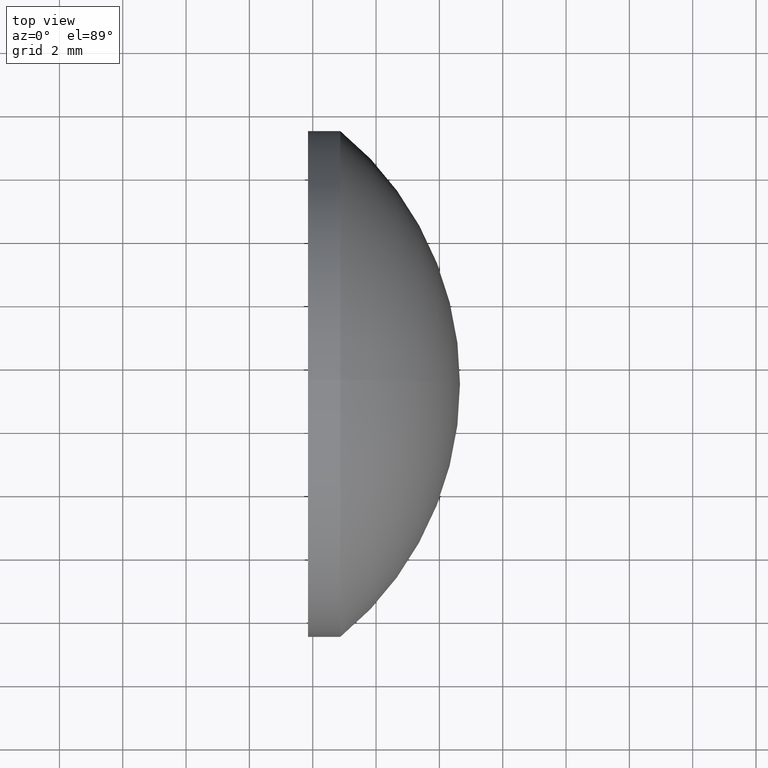
[diagram: clean part render]
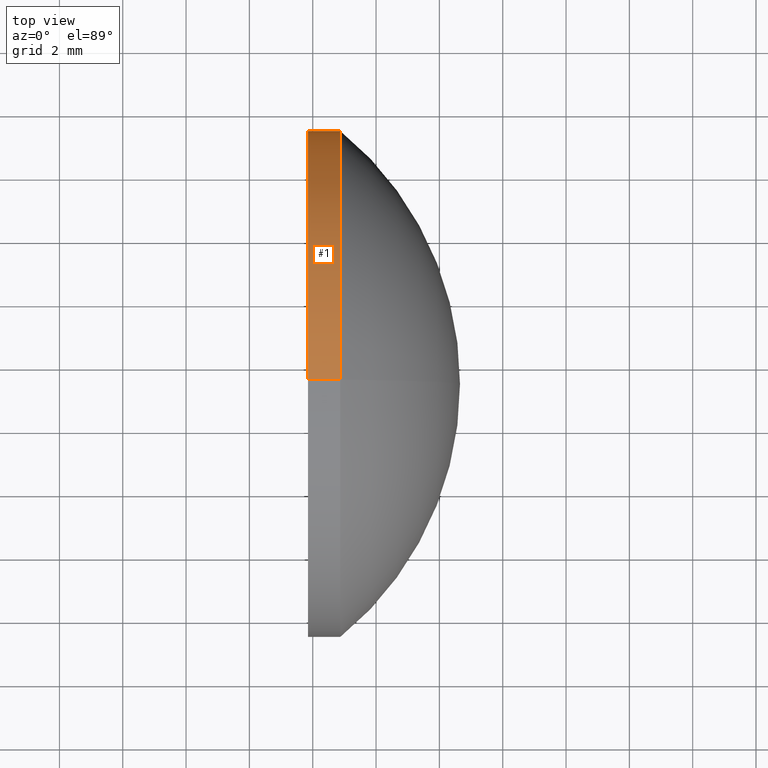
[diagram: same view with one face highlighted and labeled with its STEP entity id]
A machine part, top view. The second image highlights one B-rep face of the part: STEP entity #1.
In plain terms, the highlighted cylindrical surface (partial cylindrical patch) has radius 8 mm, axis along (-1, -0, -0).
Its self-contained STEP definition (entity closure, byte-faithful):
#1 = ADVANCED_FACE ( 'NONE', ( #79 ), #45, .T. ) ;
#10 = VERTEX_POINT ( 'NONE', #75 ) ;
#11 = AXIS2_PLACEMENT_3D ( 'NONE', #70, #33, #102 ) ;
#18 = CARTESIAN_POINT ( 'NONE',  ( 447.9277335634653200, 135.4163009679578000, 8.000000000000007100 ) ) ;
#20 = DIRECTION ( 'NONE',  ( -1.000000000000000000, -0.0000000000000000000, -0.0000000000000000000 ) ) ;
#28 = VECTOR ( 'NONE', #106, 1000.000000000000000 ) ;
#29 = ORIENTED_EDGE ( 'NONE', *, *, #56, .T. ) ;
#33 = DIRECTION ( 'NONE',  ( -1.000000000000000000, -0.0000000000000000000, -0.0000000000000000000 ) ) ;
#38 = DIRECTION ( 'NONE',  ( 0.0000000000000000000, 0.0000000000000000000, 1.000000000000000000 ) ) ;
#44 = EDGE_CURVE ( 'NONE', #10, #127, #72, .T. ) ;
#45 = CYLINDRICAL_SURFACE ( 'NONE', #153, 8.000000000000007100 ) ;
#47 = DIRECTION ( 'NONE',  ( -1.000000000000000000, -0.0000000000000000000, -0.0000000000000000000 ) ) ;
#52 = DIRECTION ( 'NONE',  ( -1.000000000000000000, -0.0000000000000000000, -0.0000000000000000000 ) ) ;
#56 = EDGE_CURVE ( 'NONE', #59, #10, #58, .T. ) ;
#57 = EDGE_CURVE ( 'NONE', #135, #127, #65, .T. ) ;
#58 = CIRCLE ( 'NONE', #11, 8.000000000000007100 ) ;
#59 = VERTEX_POINT ( 'NONE', #62 ) ;
#62 = CARTESIAN_POINT ( 'NONE',  ( 450.8705502683110400, 135.4163009679578000, 8.000000000000003600 ) ) ;
#63 = EDGE_LOOP ( 'NONE', ( #29, #109, #86, #67 ) ) ;
#65 = CIRCLE ( 'NONE', #105, 8.000000000000007100 ) ;
#67 = ORIENTED_EDGE ( 'NONE', *, *, #87, .F. ) ;
#70 = CARTESIAN_POINT ( 'NONE',  ( 450.8705502683110400, 135.4163009679578000, 0.0000000000000000000 ) ) ;
#72 = LINE ( 'NONE', #120, #81 ) ;
#75 = CARTESIAN_POINT ( 'NONE',  ( 450.8705502683110400, 135.4163009679578000, -8.000000000000003600 ) ) ;
#76 = CARTESIAN_POINT ( 'NONE',  ( 449.8505502683110500, 135.4163009679578000, 8.000000000000007100 ) ) ;
#79 = FACE_OUTER_BOUND ( 'NONE', #63, .T. ) ;
#81 = VECTOR ( 'NONE', #47, 1000.000000000000000 ) ;
#86 = ORIENTED_EDGE ( 'NONE', *, *, #57, .F. ) ;
#87 = EDGE_CURVE ( 'NONE', #59, #135, #90, .T. ) ;
#90 = LINE ( 'NONE', #18, #28 ) ;
#102 = DIRECTION ( 'NONE',  ( 0.0000000000000000000, 0.0000000000000000000, 1.000000000000000000 ) ) ;
#105 = AXIS2_PLACEMENT_3D ( 'NONE', #150, #52, #160 ) ;
#106 = DIRECTION ( 'NONE',  ( -1.000000000000000000, -0.0000000000000000000, -0.0000000000000000000 ) ) ;
#109 = ORIENTED_EDGE ( 'NONE', *, *, #44, .T. ) ;
#120 = CARTESIAN_POINT ( 'NONE',  ( 447.9277335634653200, 135.4163009679578000, -8.000000000000007100 ) ) ;
#127 = VERTEX_POINT ( 'NONE', #132 ) ;
#132 = CARTESIAN_POINT ( 'NONE',  ( 449.8505502683110500, 135.4163009679578000, -8.000000000000007100 ) ) ;
#135 = VERTEX_POINT ( 'NONE', #76 ) ;
#150 = CARTESIAN_POINT ( 'NONE',  ( 449.8505502683110500, 135.4163009679578000, 0.0000000000000000000 ) ) ;
#153 = AXIS2_PLACEMENT_3D ( 'NONE', #163, #20, #38 ) ;
#160 = DIRECTION ( 'NONE',  ( 0.0000000000000000000, 0.0000000000000000000, 1.000000000000000000 ) ) ;
#163 = CARTESIAN_POINT ( 'NONE',  ( 447.9277335634653200, 135.4163009679578000, 0.0000000000000000000 ) ) ;